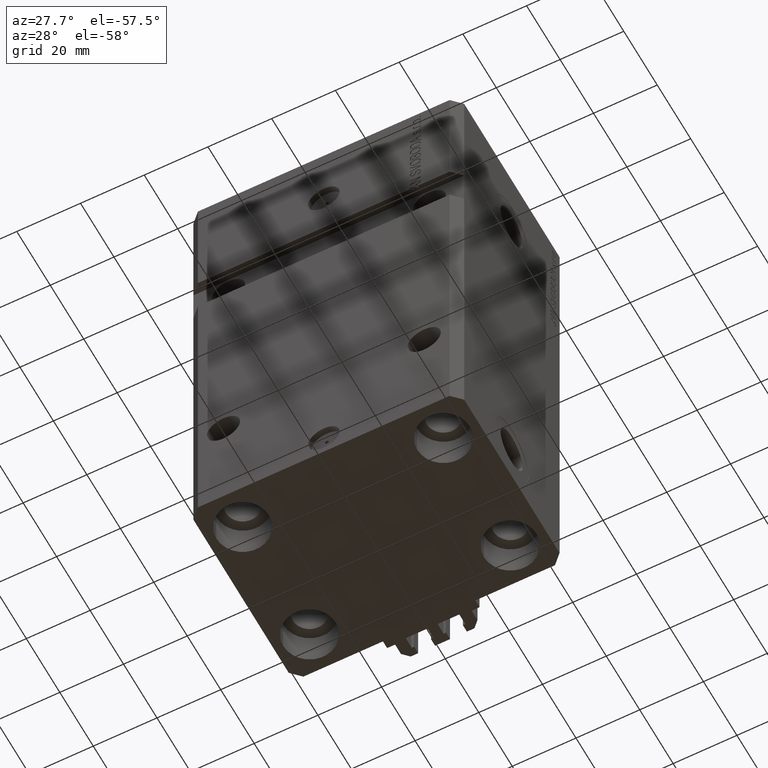
[diagram: clean part render]
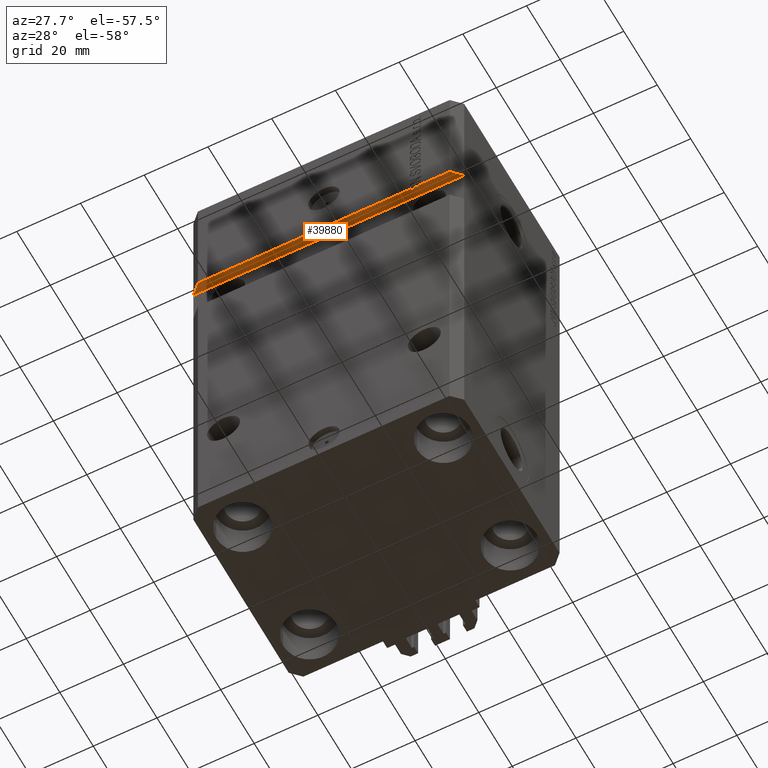
[diagram: same view with one face highlighted and labeled with its STEP entity id]
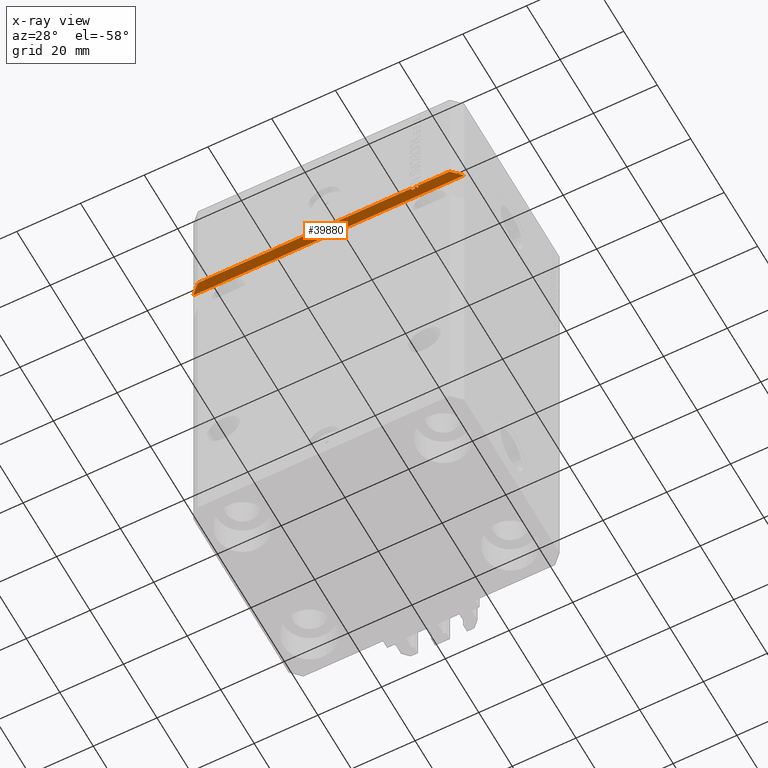
[diagram: x-ray of the same camera — body ghosted, the highlighted face saturated]
A machine part, auxiliary view. The second image highlights one B-rep face of the part: STEP entity #39880.
The next image is the same camera in x-ray: the body ghosted, the highlighted face saturated — about 0% of this face is hidden behind the body in this view.
In plain terms, the highlighted planar face has unit normal (-0, -0, 1).
Its self-contained STEP definition (entity closure, byte-faithful):
#1028 = EDGE_CURVE ( 'NONE', #5957, #4936, #36078, .T. ) ;
#1204 = EDGE_CURVE ( 'NONE', #29550, #10553, #14079, .T. ) ;
#1309 = ORIENTED_EDGE ( 'NONE', *, *, #12772, .T. ) ;
#2099 = VERTEX_POINT ( 'NONE', #16381 ) ;
#2250 = CARTESIAN_POINT ( 'NONE',  ( 27.36912325285902270, -31.49999999999999289, -37.00000000000000711 ) ) ;
#2397 = EDGE_CURVE ( 'NONE', #15345, #2099, #20105, .T. ) ;
#2400 = CARTESIAN_POINT ( 'NONE',  ( 39.50000000000000711, -31.49999999999999289, -37.00000000000000000 ) ) ;
#2439 = ORIENTED_EDGE ( 'NONE', *, *, #28596, .T. ) ;
#4222 = CARTESIAN_POINT ( 'NONE',  ( -39.50000000000001421, -31.50000000000000000, -37.00000000000000711 ) ) ;
#4228 = VERTEX_POINT ( 'NONE', #22580 ) ;
#4754 = VECTOR ( 'NONE', #24343, 1000.000000000000000 ) ;
#4936 = VERTEX_POINT ( 'NONE', #2400 ) ;
#5839 = CARTESIAN_POINT ( 'NONE',  ( 42.50000000000001421, -28.49999999999999289, -37.00000000000000000 ) ) ;
#5844 = DIRECTION ( 'NONE',  ( -2.352167425053553784E-16, 1.000000000000000000, -9.600847180395937970E-33 ) ) ;
#5957 = VERTEX_POINT ( 'NONE', #32473 ) ;
#6917 = DIRECTION ( 'NONE',  ( -1.000000000000000000, -1.632680918566406054E-16, -8.163404592832030268E-17 ) ) ;
#7874 = DIRECTION ( 'NONE',  ( -1.000000000000000000, 0.000000000000000000, -8.163404592832029035E-17 ) ) ;
#7875 = VERTEX_POINT ( 'NONE', #31473 ) ;
#8291 = ORIENTED_EDGE ( 'NONE', *, *, #1204, .T. ) ;
#9945 = DIRECTION ( 'NONE',  ( -1.000000000000000000, 0.000000000000000000, -8.163404592832029035E-17 ) ) ;
#10553 = VERTEX_POINT ( 'NONE', #14610 ) ;
#10708 = VECTOR ( 'NONE', #22336, 1000.000000000000000 ) ;
#10735 = CARTESIAN_POINT ( 'NONE',  ( 27.36912325285895164, -30.99999999999998579, -36.99999999999999289 ) ) ;
#10867 = LINE ( 'NONE', #26215, #10708 ) ;
#10916 = ORIENTED_EDGE ( 'NONE', *, *, #37232, .T. ) ;
#11414 = ORIENTED_EDGE ( 'NONE', *, *, #13718, .T. ) ;
#12297 = CARTESIAN_POINT ( 'NONE',  ( -42.50000000000000711, -28.49999999999999645, -37.00000000000000711 ) ) ;
#12692 = VECTOR ( 'NONE', #5844, 1000.000000000000000 ) ;
#12772 = EDGE_CURVE ( 'NONE', #32848, #4228, #10867, .T. ) ;
#13718 = EDGE_CURVE ( 'NONE', #43160, #32571, #39576, .T. ) ;
#13861 = EDGE_CURVE ( 'NONE', #4228, #29550, #37584, .T. ) ;
#13941 = DIRECTION ( 'NONE',  ( -8.163404592832029035E-17, -9.600847180396128185E-33, 1.000000000000000000 ) ) ;
#14079 = LINE ( 'NONE', #20709, #12692 ) ;
#14172 = PLANE ( 'NONE',  #36844 ) ;
#14610 = CARTESIAN_POINT ( 'NONE',  ( 28.43744795748433418, -30.99999999999999289, -37.00000000000000000 ) ) ;
#14843 = EDGE_CURVE ( 'NONE', #4936, #7875, #33947, .T. ) ;
#15345 = VERTEX_POINT ( 'NONE', #32147 ) ;
#15409 = VECTOR ( 'NONE', #24740, 1000.000000000000000 ) ;
#16149 = CARTESIAN_POINT ( 'NONE',  ( 42.50000000000001421, -31.49999999999999289, -37.00000000000000000 ) ) ;
#16339 = VECTOR ( 'NONE', #6917, 1000.000000000000000 ) ;
#16381 = CARTESIAN_POINT ( 'NONE',  ( -42.50000000000001421, -28.50000000000000711, -37.00000000000000711 ) ) ;
#16439 = DIRECTION ( 'NONE',  ( -0.7071067811865471286, 0.7071067811865479058, -5.772398745160930101E-17 ) ) ;
#17299 = EDGE_LOOP ( 'NONE', ( #30722, #44996, #2439, #24938, #1309, #34363, #8291, #10916, #11414, #42795, #29356, #46437 ) ) ;
#17603 = FACE_OUTER_BOUND ( 'NONE', #17299, .T. ) ;
#17761 = VECTOR ( 'NONE', #30765, 1000.000000000000000 ) ;
#18602 = LINE ( 'NONE', #33461, #16339 ) ;
#20105 = LINE ( 'NONE', #12297, #34537 ) ;
#20709 = CARTESIAN_POINT ( 'NONE',  ( 28.43744795748433418, -30.99999999999999289, -37.00000000000000000 ) ) ;
#21627 = EDGE_CURVE ( 'NONE', #32571, #15345, #18602, .T. ) ;
#22336 = DIRECTION ( 'NONE',  ( 2.352167425053553784E-16, -1.000000000000000000, 9.600847180395937970E-33 ) ) ;
#22580 = CARTESIAN_POINT ( 'NONE',  ( 29.04545454545453254, -31.49999999999999289, -37.00000000000000000 ) ) ;
#22675 = VECTOR ( 'NONE', #43502, 1000.000000000000000 ) ;
#23204 = VECTOR ( 'NONE', #7874, 1000.000000000000000 ) ;
#23997 = EDGE_CURVE ( 'NONE', #5957, #2099, #39190, .T. ) ;
#24285 = CARTESIAN_POINT ( 'NONE',  ( 29.04545454545453254, -30.99999999999999289, -37.00000000000000000 ) ) ;
#24343 = DIRECTION ( 'NONE',  ( -1.000000000000000000, -1.632680918566406054E-16, -8.163404592832030268E-17 ) ) ;
#24502 = CARTESIAN_POINT ( 'NONE',  ( 27.36912325285897296, -30.99999999999999289, -37.00000000000000000 ) ) ;
#24740 = DIRECTION ( 'NONE',  ( 2.352167425053553291E-16, -1.000000000000000000, 9.600847180395936601E-33 ) ) ;
#24802 = LINE ( 'NONE', #43061, #37874 ) ;
#24938 = ORIENTED_EDGE ( 'NONE', *, *, #25015, .T. ) ;
#25015 = EDGE_CURVE ( 'NONE', #42012, #32848, #36206, .T. ) ;
#25213 = CARTESIAN_POINT ( 'NONE',  ( 29.45454545454544260, -30.99999999999999289, -37.00000000000000000 ) ) ;
#26215 = CARTESIAN_POINT ( 'NONE',  ( 29.04545454545453254, -30.99999999999999289, -37.00000000000000000 ) ) ;
#26651 = VECTOR ( 'NONE', #40063, 1000.000000000000000 ) ;
#28596 = EDGE_CURVE ( 'NONE', #7875, #42012, #32754, .T. ) ;
#29356 = ORIENTED_EDGE ( 'NONE', *, *, #2397, .T. ) ;
#29550 = VERTEX_POINT ( 'NONE', #32948 ) ;
#30722 = ORIENTED_EDGE ( 'NONE', *, *, #1028, .T. ) ;
#30765 = DIRECTION ( 'NONE',  ( -1.000000000000000000, -1.632680918566406054E-16, -8.163404592832030268E-17 ) ) ;
#31473 = CARTESIAN_POINT ( 'NONE',  ( 29.45454545454544260, -31.49999999999999289, -37.00000000000000000 ) ) ;
#32147 = CARTESIAN_POINT ( 'NONE',  ( -39.50000000000000000, -31.50000000000000711, -37.00000000000000711 ) ) ;
#32429 = DIRECTION ( 'NONE',  ( -0.7071067811865483499, -0.7071067811865466846, -5.772398745160942427E-17 ) ) ;
#32462 = CARTESIAN_POINT ( 'NONE',  ( 42.50000000000001421, -28.49999999999999289, -37.00000000000000000 ) ) ;
#32473 = CARTESIAN_POINT ( 'NONE',  ( 42.50000000000001421, -28.49999999999999289, -37.00000000000000000 ) ) ;
#32571 = VERTEX_POINT ( 'NONE', #2250 ) ;
#32754 = LINE ( 'NONE', #25213, #26651 ) ;
#32848 = VERTEX_POINT ( 'NONE', #24285 ) ;
#32948 = CARTESIAN_POINT ( 'NONE',  ( 28.43744795748431287, -31.49999999999999289, -37.00000000000000000 ) ) ;
#33461 = CARTESIAN_POINT ( 'NONE',  ( 42.50000000000001421, -31.49999999999999289, -37.00000000000000000 ) ) ;
#33703 = VECTOR ( 'NONE', #32429, 1000.000000000000000 ) ;
#33947 = LINE ( 'NONE', #16149, #17761 ) ;
#34363 = ORIENTED_EDGE ( 'NONE', *, *, #13861, .T. ) ;
#34537 = VECTOR ( 'NONE', #16439, 1000.000000000000000 ) ;
#35230 = CARTESIAN_POINT ( 'NONE',  ( 29.45454545454544260, -30.99999999999997868, -37.00000000000000000 ) ) ;
#35410 = DIRECTION ( 'NONE',  ( 1.000000000000000000, 0.000000000000000000, 8.163404592832029035E-17 ) ) ;
#35617 = CARTESIAN_POINT ( 'NONE',  ( 39.50000000000000000, -31.50000000000000711, -37.00000000000000711 ) ) ;
#36078 = LINE ( 'NONE', #35617, #33703 ) ;
#36206 = LINE ( 'NONE', #42792, #22675 ) ;
#36844 = AXIS2_PLACEMENT_3D ( 'NONE', #32462, #13941, #35410 ) ;
#37232 = EDGE_CURVE ( 'NONE', #10553, #43160, #24802, .T. ) ;
#37584 = LINE ( 'NONE', #4222, #23204 ) ;
#37874 = VECTOR ( 'NONE', #9945, 1000.000000000000000 ) ;
#39190 = LINE ( 'NONE', #5839, #4754 ) ;
#39576 = LINE ( 'NONE', #24502, #15409 ) ;
#39880 = ADVANCED_FACE ( 'NONE', ( #17603 ), #14172, .F. ) ;
#40063 = DIRECTION ( 'NONE',  ( -2.352167425053553784E-16, 1.000000000000000000, -9.600847180395937970E-33 ) ) ;
#42012 = VERTEX_POINT ( 'NONE', #35230 ) ;
#42792 = CARTESIAN_POINT ( 'NONE',  ( 2.902851328095173054E-15, -30.99999999999997868, -37.00000000000000000 ) ) ;
#42795 = ORIENTED_EDGE ( 'NONE', *, *, #21627, .T. ) ;
#43061 = CARTESIAN_POINT ( 'NONE',  ( 2.902851328095173054E-15, -30.99999999999997868, -37.00000000000000000 ) ) ;
#43160 = VERTEX_POINT ( 'NONE', #10735 ) ;
#43502 = DIRECTION ( 'NONE',  ( -1.000000000000000000, 0.000000000000000000, -8.163404592832029035E-17 ) ) ;
#44996 = ORIENTED_EDGE ( 'NONE', *, *, #14843, .T. ) ;
#46437 = ORIENTED_EDGE ( 'NONE', *, *, #23997, .F. ) ;